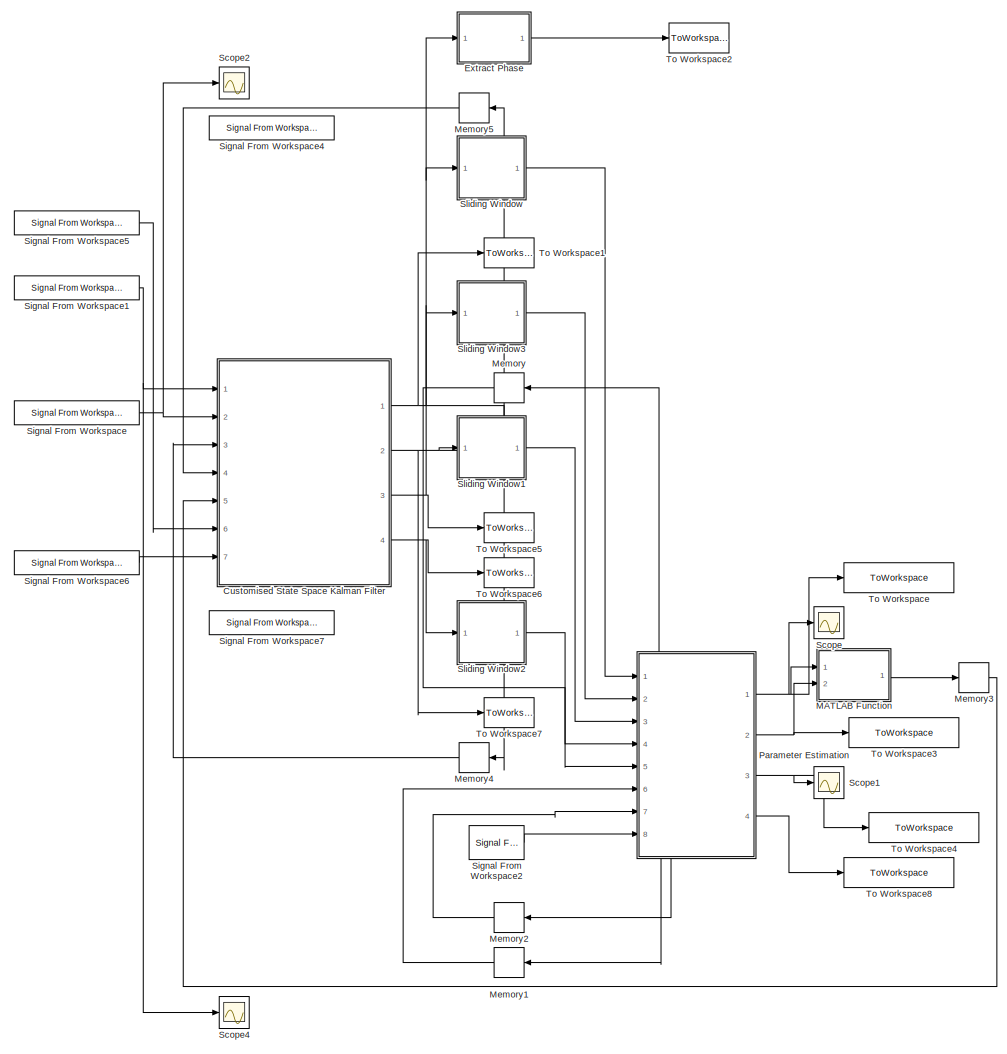
[diagram: root canvas - part 1/2, most of the canvas]
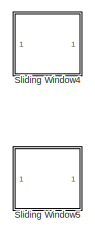
[diagram: root canvas - part 2/2, top right region]
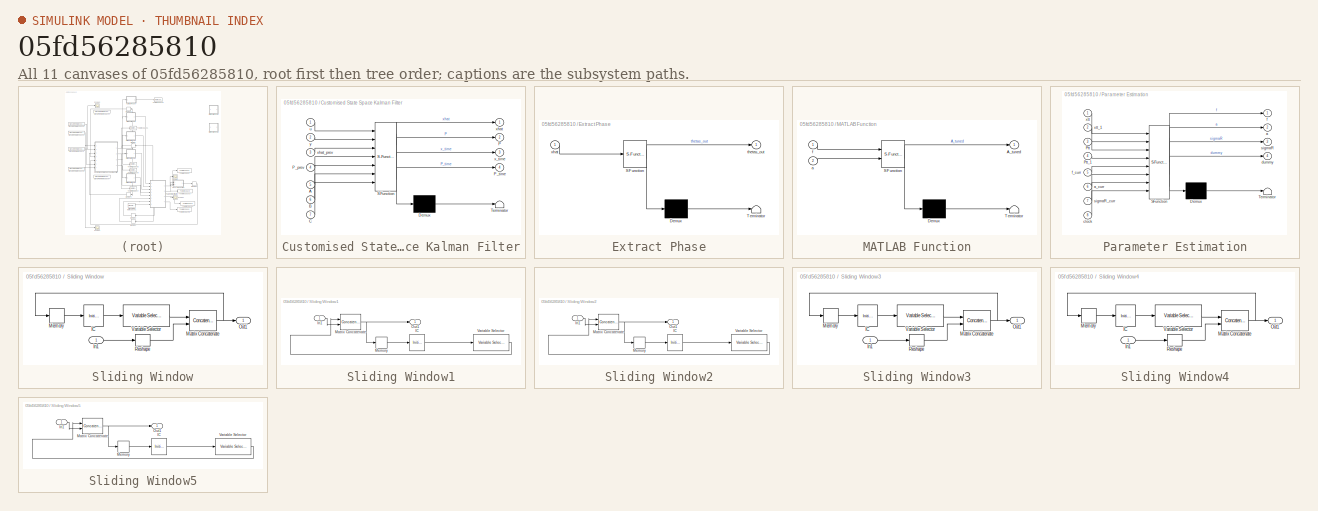
[diagram: thumbnail index - all 11 canvases of the model, root first then tree order]
MODEL slx_05fd56285810
KIND model
CONFIG AbsTol = auto
CONFIG EnableMultiTasking = off
CONFIG FixedStep = model.Ts
CONFIG MaxStep = auto
CONFIG MinStep = auto
CONFIG RelTol = 1e-6
CONFIG SampleTimeConstraint = Unconstrained
CONFIG Solver = VariableStepAuto
CONFIG SolverName = VariableStepAuto
CONFIG StartTime = 0.0
CONFIG StopTime = model.sim_dur
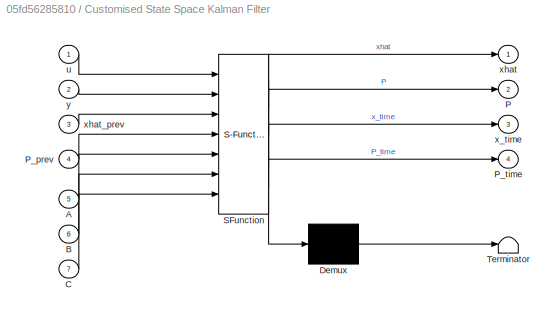
BLOCK [SubSystem] Customised State Space Kalman Filter
  ErrorFcn = Stateflow.Translate.translate
  PermitHierarchicalResolution = ExplicitOnly
  Ports = [7, 4]
  RequestExecContextInheritance = off
  SFBlockType = MATLAB Function
  TreatAsAtomicUnit = on
BLOCK [Demux] Customised State Space Kalman Filter/ Demux 
  Outputs = 1
  Ports = [1, 1]
BLOCK [S-Function] Customised State Space Kalman Filter/ SFunction 
  EnableBusSupport = on
  FunctionName = sf_sfun
  Parameters = model
  PortCounts = [7 5]
  Ports = [7, 5]
  SFcnIsStateOwnerBlock = off
  SFunctionDeploymentMode = off
  Tag = Stateflow S-Function 6
BLOCK [Terminator] Customised State Space Kalman Filter/ Terminator 
BLOCK [Inport] Customised State Space Kalman Filter/A
  IconDisplay = Port number
  Port = 5
BLOCK [Inport] Customised State Space Kalman Filter/B
  IconDisplay = Port number
  Port = 6
BLOCK [Inport] Customised State Space Kalman Filter/C
  IconDisplay = Port number
  Port = 7
BLOCK [Outport] Customised State Space Kalman Filter/P
  IconDisplay = Port number
  Port = 2
BLOCK [Inport] Customised State Space Kalman Filter/P_prev
  IconDisplay = Port number
  Port = 4
BLOCK [Outport] Customised State Space Kalman Filter/P_time
  IconDisplay = Port number
  Port = 4
BLOCK [Inport] Customised State Space Kalman Filter/u
  IconDisplay = Port number
BLOCK [Outport] Customised State Space Kalman Filter/x_time
  IconDisplay = Port number
  Port = 3
BLOCK [Outport] Customised State Space Kalman Filter/xhat
  IconDisplay = Port number
BLOCK [Inport] Customised State Space Kalman Filter/xhat_prev
  IconDisplay = Port number
  Port = 3
BLOCK [Inport] Customised State Space Kalman Filter/y
  IconDisplay = Port number
  Port = 2
BLOCK [SubSystem] Extract Phase
  ErrorFcn = Stateflow.Translate.translate
  PermitHierarchicalResolution = ExplicitOnly
  Ports = [1, 1]
  RequestExecContextInheritance = off
  SFBlockType = MATLAB Function
  SystemSampleTime = model.Ts
  TreatAsAtomicUnit = on
BLOCK [Demux] Extract Phase/ Demux 
  Outputs = 1
  Ports = [1, 1]
BLOCK [S-Function] Extract Phase/ SFunction 
  EnableBusSupport = on
  FunctionName = sf_sfun
  PortCounts = [1 2]
  Ports = [1, 2]
  SFcnIsStateOwnerBlock = off
  SFunctionDeploymentMode = off
  Tag = Stateflow S-Function 2
BLOCK [Terminator] Extract Phase/ Terminator 
BLOCK [Outport] Extract Phase/thetas_out
  IconDisplay = Port number
BLOCK [Inport] Extract Phase/xhat
  IconDisplay = Port number
BLOCK [SubSystem] MATLAB Function
  ErrorFcn = Stateflow.Translate.translate
  PermitHierarchicalResolution = ExplicitOnly
  Ports = [2, 1]
  RequestExecContextInheritance = off
  SFBlockType = MATLAB Function
  SystemSampleTime = model.Ts
  TreatAsAtomicUnit = on
BLOCK [Demux] MATLAB Function/ Demux 
  Outputs = 1
  Ports = [1, 1]
BLOCK [S-Function] MATLAB Function/ SFunction 
  EnableBusSupport = on
  FunctionName = sf_sfun
  Parameters = model
  PortCounts = [2 2]
  Ports = [2, 2]
  SFcnIsStateOwnerBlock = off
  SFunctionDeploymentMode = off
  Tag = Stateflow S-Function 4
BLOCK [Terminator] MATLAB Function/ Terminator 
BLOCK [Outport] MATLAB Function/A_tuned
  IconDisplay = Port number
BLOCK [Inport] MATLAB Function/a
  IconDisplay = Port number
  Port = 2
BLOCK [Inport] MATLAB Function/f
  IconDisplay = Port number
BLOCK [Memory] Memory
  InheritSampleTime = on
  InitialCondition = f_curr
BLOCK [Memory] Memory1
  InheritSampleTime = on
  InitialCondition = a_curr
BLOCK [Memory] Memory2
  InheritSampleTime = on
  InitialCondition = sigmaR_curr
BLOCK [Memory] Memory3
  InheritSampleTime = on
  InitialCondition = model.A
BLOCK [Memory] Memory4
  InheritSampleTime = on
  InitialCondition = model.x_0
BLOCK [Memory] Memory5
  InheritSampleTime = on
  InitialCondition = model.Q
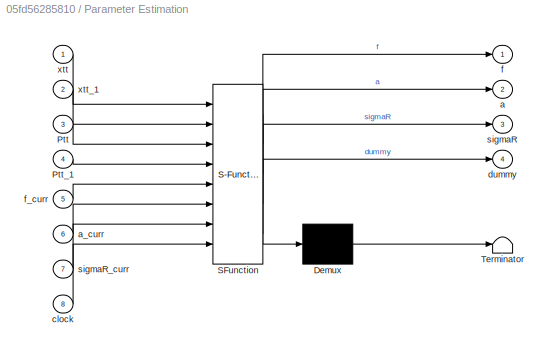
BLOCK [SubSystem] Parameter Estimation
  ErrorFcn = Stateflow.Translate.translate
  PermitHierarchicalResolution = ExplicitOnly
  Ports = [8, 4]
  RequestExecContextInheritance = off
  SFBlockType = MATLAB Function
  SystemSampleTime = model.Ts
  TreatAsAtomicUnit = on
BLOCK [Demux] Parameter Estimation/ Demux 
  Outputs = 1
  Ports = [1, 1]
BLOCK [S-Function] Parameter Estimation/ SFunction 
  EnableBusSupport = on
  FunctionName = sf_sfun
  Parameters = model
  PortCounts = [8 5]
  Ports = [8, 5]
  SFcnIsStateOwnerBlock = off
  SFunctionDeploymentMode = off
  Tag = Stateflow S-Function 1
BLOCK [Terminator] Parameter Estimation/ Terminator 
BLOCK [Inport] Parameter Estimation/Ptt
  IconDisplay = Port number
  Port = 3
BLOCK [Inport] Parameter Estimation/Ptt_1
  IconDisplay = Port number
  Port = 4
BLOCK [Outport] Parameter Estimation/a
  IconDisplay = Port number
  Port = 2
BLOCK [Inport] Parameter Estimation/a_curr
  IconDisplay = Port number
  Port = 6
BLOCK [Inport] Parameter Estimation/clock
  IconDisplay = Port number
  Port = 8
BLOCK [Outport] Parameter Estimation/dummy
  IconDisplay = Port number
  Port = 4
BLOCK [Outport] Parameter Estimation/f
  IconDisplay = Port number
BLOCK [Inport] Parameter Estimation/f_curr
  IconDisplay = Port number
  Port = 5
BLOCK [Outport] Parameter Estimation/sigmaR
  IconDisplay = Port number
  Port = 3
BLOCK [Inport] Parameter Estimation/sigmaR_curr
  IconDisplay = Port number
  Port = 7
BLOCK [Inport] Parameter Estimation/xtt
  IconDisplay = Port number
BLOCK [Inport] Parameter Estimation/xtt_1
  IconDisplay = Port number
  Port = 2
BLOCK [Scope] Scope
  Floating = off
  NumInputPorts = 1
  Ports = [1]
  ScopeSpecificationString = Simulink.scopes.TimeScopeBlockCfg('CurrentConfiguration', extmgr.ConfigurationSet(extmgr.Configuration('Core','General UI',true),extmgr.Configuration('Core','Source UI',true),extmgr.Configuration('Sources','WiredSimulink',true,'DataLoggingVariableName','ScopeData1'),extmgr.Configuration('Visuals','Time Domain',true,'SerializedDisplays',{struct('MinYLimReal','-12.86093','MaxYLimReal','18.85715','YL...<+1457ch>
BLOCK [Scope] Scope1
  Floating = off
  NumInputPorts = 1
  Ports = [1]
  ScopeSpecificationString = Simulink.scopes.TimeScopeBlockCfg('CurrentConfiguration', extmgr.ConfigurationSet(extmgr.Configuration('Core','General UI',true),extmgr.Configuration('Core','Source UI',true),extmgr.Configuration('Sources','WiredSimulink',true,'DataLoggingVariableName','ScopeData1'),extmgr.Configuration('Visuals','Time Domain',true,'SerializedDisplays',{struct('MinYLimReal','-1.00000','MaxYLimReal','1.00000','YLab...<+1386ch>
BLOCK [Scope] Scope2
  Floating = off
  NumInputPorts = 1
  Ports = [1]
  ScopeSpecificationString = Simulink.scopes.TimeScopeBlockCfg('CurrentConfiguration', extmgr.ConfigurationSet(extmgr.Configuration('Core','General UI',true),extmgr.Configuration('Core','Source UI',true),extmgr.Configuration('Sources','WiredSimulink',true,'DataLoggingVariableName','ScopeData1'),extmgr.Configuration('Visuals','Time Domain',true,'SerializedDisplays',{struct('MinYLimReal','-0.48787','MaxYLimReal','0.48787','YLab...<+1451ch>
BLOCK [Scope] Scope4
  Floating = off
  NumInputPorts = 1
  Ports = [1]
  ScopeSpecificationString = Simulink.scopes.TimeScopeBlockCfg('CurrentConfiguration', extmgr.ConfigurationSet(extmgr.Configuration('Core','General UI',true),extmgr.Configuration('Core','Source UI',true),extmgr.Configuration('Sources','WiredSimulink',true),extmgr.Configuration('Visuals','Time Domain',true,'SerializedDisplays',{struct('MinYLimReal','-1.00000','MaxYLimReal','1.00000','YLabelReal','','MinYLimMag','0.00000','MaxY...<+1371ch>
BLOCK [Reference] Signal From Workspace  REF=dspsrcs4/Signal From
Workspace
  Ports = [0, 1]
  SourceBlock = dspsrcs4/Signal From\nWorkspace
  SourceProductBaseCode = DS
  SourceProductName = DSP System Toolbox
  SourceType = Signal From Workspace
BLOCK [Reference] Signal From Workspace1  REF=dspsrcs4/Signal From
Workspace
  Ports = [0, 1]
  SourceBlock = dspsrcs4/Signal From\nWorkspace
  SourceProductBaseCode = DS
  SourceProductName = DSP System Toolbox
  SourceType = Signal From Workspace
BLOCK [Reference] Signal From Workspace2  REF=dspsrcs4/Signal From
Workspace
  Ports = [0, 1]
  SourceBlock = dspsrcs4/Signal From\nWorkspace
  SourceProductBaseCode = DS
  SourceProductName = DSP System Toolbox
  SourceType = Signal From Workspace
BLOCK [Reference] Signal From Workspace4  REF=dspsrcs4/Signal From
Workspace
  Ports = [0, 1]
  SourceBlock = dspsrcs4/Signal From\nWorkspace
  SourceProductBaseCode = DS
  SourceProductName = DSP System Toolbox
  SourceType = Signal From Workspace
BLOCK [Reference] Signal From Workspace5  REF=dspsrcs4/Signal From
Workspace
  Ports = [0, 1]
  SourceBlock = dspsrcs4/Signal From\nWorkspace
  SourceProductBaseCode = DS
  SourceProductName = DSP System Toolbox
  SourceType = Signal From Workspace
BLOCK [Reference] Signal From Workspace6  REF=dspsrcs4/Signal From
Workspace
  Ports = [0, 1]
  SourceBlock = dspsrcs4/Signal From\nWorkspace
  SourceProductBaseCode = DS
  SourceProductName = DSP System Toolbox
  SourceType = Signal From Workspace
BLOCK [Reference] Signal From Workspace7  REF=dspsrcs4/Signal From
Workspace
  Ports = [0, 1]
  SourceBlock = dspsrcs4/Signal From\nWorkspace
  SourceProductBaseCode = DS
  SourceProductName = DSP System Toolbox
  SourceType = Signal From Workspace
BLOCK [SubSystem] Sliding Window
  Ports = [1, 1]
  RequestExecContextInheritance = off
BLOCK [InitialCondition] Sliding Window/IC
  Value = zeros(model.param_est_length+1, 2)
BLOCK [Inport] Sliding Window/In1
  IconDisplay = Port number
BLOCK [Concatenate] Sliding Window/Matrix Concatenate
  Mode = Multidimensional array
  Ports = [2, 1]
BLOCK [Memory] Sliding Window/Memory
  InheritSampleTime = on
BLOCK [Outport] Sliding Window/Out1
  IconDisplay = Port number
BLOCK [Reshape] Sliding Window/Reshape
  OutputDimensionality = Row vector (2-D)
  Ports = [1, 1]
BLOCK [Reference] Sliding Window/Variable Selector  REF=dspindex/Variable
Selector
  Ports = [1, 1]
  SourceBlock = dspindex/Variable\nSelector
  SourceProductBaseCode = DS
  SourceProductName = DSP System Toolbox
  SourceType = Variable Selector
BLOCK [SubSystem] Sliding Window1
  Ports = [1, 1]
  RequestExecContextInheritance = off
BLOCK [InitialCondition] Sliding Window1/IC
  Value = zeros(2*(model.param_est_length+1), 2)
BLOCK [Inport] Sliding Window1/In1
  IconDisplay = Port number
BLOCK [Concatenate] Sliding Window1/Matrix Concatenate
  Mode = Multidimensional array
  Ports = [2, 1]
BLOCK [Memory] Sliding Window1/Memory
  InheritSampleTime = on
BLOCK [Outport] Sliding Window1/Out1
  IconDisplay = Port number
BLOCK [Reference] Sliding Window1/Variable Selector  REF=dspindex/Variable
Selector
  Ports = [1, 1]
  SourceBlock = dspindex/Variable\nSelector
  SourceProductBaseCode = DS
  SourceProductName = DSP System Toolbox
  SourceType = Variable Selector
BLOCK [SubSystem] Sliding Window2
  Ports = [1, 1]
  RequestExecContextInheritance = off
BLOCK [InitialCondition] Sliding Window2/IC
  Value = zeros(2*(model.param_est_length+1), 2)
BLOCK [Inport] Sliding Window2/In1
  IconDisplay = Port number
BLOCK [Concatenate] Sliding Window2/Matrix Concatenate
  Mode = Multidimensional array
  Ports = [2, 1]
BLOCK [Memory] Sliding Window2/Memory
  InheritSampleTime = on
BLOCK [Outport] Sliding Window2/Out1
  IconDisplay = Port number
BLOCK [Reference] Sliding Window2/Variable Selector  REF=dspindex/Variable
Selector
  Ports = [1, 1]
  SourceBlock = dspindex/Variable\nSelector
  SourceProductBaseCode = DS
  SourceProductName = DSP System Toolbox
  SourceType = Variable Selector
BLOCK [SubSystem] Sliding Window3
  Ports = [1, 1]
  RequestExecContextInheritance = off
BLOCK [InitialCondition] Sliding Window3/IC
  Value = zeros(model.param_est_length+1, 2)
BLOCK [Inport] Sliding Window3/In1
  IconDisplay = Port number
BLOCK [Concatenate] Sliding Window3/Matrix Concatenate
  Mode = Multidimensional array
  Ports = [2, 1]
BLOCK [Memory] Sliding Window3/Memory
  InheritSampleTime = on
BLOCK [Outport] Sliding Window3/Out1
  IconDisplay = Port number
BLOCK [Reshape] Sliding Window3/Reshape
  OutputDimensionality = Row vector (2-D)
  Ports = [1, 1]
BLOCK [Reference] Sliding Window3/Variable Selector  REF=dspindex/Variable
Selector
  Ports = [1, 1]
  SourceBlock = dspindex/Variable\nSelector
  SourceProductBaseCode = DS
  SourceProductName = DSP System Toolbox
  SourceType = Variable Selector
BLOCK [SubSystem] Sliding Window4
  Commented = on
  Ports = [1, 1]
  RequestExecContextInheritance = off
BLOCK [InitialCondition] Sliding Window4/IC
  Value = zeros(model.window, 2)
BLOCK [Inport] Sliding Window4/In1
  IconDisplay = Port number
BLOCK [Concatenate] Sliding Window4/Matrix Concatenate
  Mode = Multidimensional array
  Ports = [2, 1]
BLOCK [Memory] Sliding Window4/Memory
  InheritSampleTime = on
BLOCK [Outport] Sliding Window4/Out1
  IconDisplay = Port number
BLOCK [Reshape] Sliding Window4/Reshape
  OutputDimensionality = Row vector (2-D)
  Ports = [1, 1]
BLOCK [Reference] Sliding Window4/Variable Selector  REF=dspindex/Variable
Selector
  Ports = [1, 1]
  SourceBlock = dspindex/Variable\nSelector
  SourceProductBaseCode = DS
  SourceProductName = DSP System Toolbox
  SourceType = Variable Selector
BLOCK [SubSystem] Sliding Window5
  Commented = on
  Ports = [1, 1]
  RequestExecContextInheritance = off
BLOCK [InitialCondition] Sliding Window5/IC
  Value = zeros(2*model.window, 2)
BLOCK [Inport] Sliding Window5/In1
  IconDisplay = Port number
BLOCK [Concatenate] Sliding Window5/Matrix Concatenate
  Mode = Multidimensional array
  Ports = [2, 1]
BLOCK [Memory] Sliding Window5/Memory
  InheritSampleTime = on
BLOCK [Outport] Sliding Window5/Out1
  IconDisplay = Port number
BLOCK [Reference] Sliding Window5/Variable Selector  REF=dspindex/Variable
Selector
  Ports = [1, 1]
  SourceBlock = dspindex/Variable\nSelector
  SourceProductBaseCode = DS
  SourceProductName = DSP System Toolbox
  SourceType = Variable Selector
BLOCK [ToWorkspace] To Workspace
  MaxDataPoints = 1
  Ports = [1]
  SampleTime = model.Ts
  Save2DSignal = 2-D array (concatenate along first dimension)
  VariableName = f_calculated
BLOCK [ToWorkspace] To Workspace1
  MaxDataPoints = inf
  Ports = [1]
  SampleTime = model.Ts
  Save2DSignal = 2-D array (concatenate along first dimension)
  VariableName = xtt
BLOCK [ToWorkspace] To Workspace2
  MaxDataPoints = inf
  Ports = [1]
  SampleTime = model.Ts
  Save2DSignal = 2-D array (concatenate along first dimension)
  VariableName = thetas
BLOCK [ToWorkspace] To Workspace3
  MaxDataPoints = 2
  Ports = [1]
  SampleTime = model.Ts
  Save2DSignal = 2-D array (concatenate along first dimension)
  VariableName = a_calculated
BLOCK [ToWorkspace] To Workspace4
  MaxDataPoints = 1
  Ports = [1]
  SampleTime = model.Ts
  Save2DSignal = 2-D array (concatenate along first dimension)
  VariableName = sigma2_R_calculated
BLOCK [ToWorkspace] To Workspace5
  MaxDataPoints = inf
  Ports = [1]
  SampleTime = model.Ts
  Save2DSignal = 2-D array (concatenate along first dimension)
  VariableName = xtt_1
BLOCK [ToWorkspace] To Workspace6
  MaxDataPoints = inf
  Ports = [1]
  SampleTime = model.Ts
  Save2DSignal = 2-D array (concatenate along first dimension)
  VariableName = Ptt_1
BLOCK [ToWorkspace] To Workspace7
  MaxDataPoints = inf
  Ports = [1]
  SampleTime = model.Ts
  Save2DSignal = 2-D array (concatenate along first dimension)
  VariableName = Ptt
BLOCK [ToWorkspace] To Workspace8
  MaxDataPoints = inf
  Ports = [1]
  SampleTime = model.Ts
  Save2DSignal = 2-D array (concatenate along first dimension)
  VariableName = dummy
NET Customised State Space Kalman Filter:1 -> Extract Phase:1, Memory4:1, Sliding Window:1, To Workspace1:1
NET Customised State Space Kalman Filter:2 -> Memory5:1, Sliding Window1:1, To Workspace7:1
NET Customised State Space Kalman Filter:3 -> Sliding Window3:1, To Workspace5:1
NET Customised State Space Kalman Filter:4 -> Sliding Window2:1, To Workspace6:1
LINE Extract Phase:1 -> To Workspace2:1
LINE MATLAB Function:1 -> Memory3:1
LINE Memory1:1 -> Parameter Estimation:6
LINE Memory2:1 -> Parameter Estimation:7
LINE Memory3:1 -> Customised State Space Kalman Filter:5
LINE Memory4:1 -> Customised State Space Kalman Filter:3
LINE Memory5:1 -> Customised State Space Kalman Filter:4
LINE Memory:1 -> Parameter Estimation:5
NET Parameter Estimation:1 -> MATLAB Function:1, Memory:1, Scope:1, To Workspace:1
NET Parameter Estimation:2 -> MATLAB Function:2, Memory1:1, To Workspace3:1
NET Parameter Estimation:3 -> Memory2:1, Scope1:1, To Workspace4:1
LINE Parameter Estimation:4 -> To Workspace8:1
NET Signal From Workspace1:1 -> Customised State Space Kalman Filter:1, Scope4:1
LINE Signal From Workspace2:1 -> Parameter Estimation:8
LINE Signal From Workspace5:1 -> Customised State Space Kalman Filter:6
LINE Signal From Workspace6:1 -> Customised State Space Kalman Filter:7
NET Signal From Workspace:1 -> Customised State Space Kalman Filter:2, Scope2:1
LINE Sliding Window/IC:1 -> Sliding Window/Variable Selector:1
LINE Sliding Window/In1:1 -> Sliding Window/Reshape:1
NET Sliding Window/Matrix Concatenate:1 -> Sliding Window/Memory:1, Sliding Window/Out1:1
LINE Sliding Window/Memory:1 -> Sliding Window/IC:1
LINE Sliding Window/Reshape:1 -> Sliding Window/Matrix Concatenate:2
LINE Sliding Window/Variable Selector:1 -> Sliding Window/Matrix Concatenate:1
LINE Sliding Window1/IC:1 -> Sliding Window1/Variable Selector:1
LINE Sliding Window1/In1:1 -> Sliding Window1/Matrix Concatenate:2
NET Sliding Window1/Matrix Concatenate:1 -> Sliding Window1/Memory:1, Sliding Window1/Out1:1
LINE Sliding Window1/Memory:1 -> Sliding Window1/IC:1
LINE Sliding Window1/Variable Selector:1 -> Sliding Window1/Matrix Concatenate:1
LINE Sliding Window1:1 -> Parameter Estimation:3
LINE Sliding Window2/IC:1 -> Sliding Window2/Variable Selector:1
LINE Sliding Window2/In1:1 -> Sliding Window2/Matrix Concatenate:2
NET Sliding Window2/Matrix Concatenate:1 -> Sliding Window2/Memory:1, Sliding Window2/Out1:1
LINE Sliding Window2/Memory:1 -> Sliding Window2/IC:1
LINE Sliding Window2/Variable Selector:1 -> Sliding Window2/Matrix Concatenate:1
LINE Sliding Window2:1 -> Parameter Estimation:4
LINE Sliding Window3/IC:1 -> Sliding Window3/Variable Selector:1
LINE Sliding Window3/In1:1 -> Sliding Window3/Reshape:1
NET Sliding Window3/Matrix Concatenate:1 -> Sliding Window3/Memory:1, Sliding Window3/Out1:1
LINE Sliding Window3/Memory:1 -> Sliding Window3/IC:1
LINE Sliding Window3/Reshape:1 -> Sliding Window3/Matrix Concatenate:2
LINE Sliding Window3/Variable Selector:1 -> Sliding Window3/Matrix Concatenate:1
LINE Sliding Window3:1 -> Parameter Estimation:2
LINE Sliding Window4/IC:1 -> Sliding Window4/Variable Selector:1
LINE Sliding Window4/In1:1 -> Sliding Window4/Reshape:1
NET Sliding Window4/Matrix Concatenate:1 -> Sliding Window4/Memory:1, Sliding Window4/Out1:1
LINE Sliding Window4/Memory:1 -> Sliding Window4/IC:1
LINE Sliding Window4/Reshape:1 -> Sliding Window4/Matrix Concatenate:2
LINE Sliding Window4/Variable Selector:1 -> Sliding Window4/Matrix Concatenate:1
LINE Sliding Window5/IC:1 -> Sliding Window5/Variable Selector:1
LINE Sliding Window5/In1:1 -> Sliding Window5/Matrix Concatenate:2
NET Sliding Window5/Matrix Concatenate:1 -> Sliding Window5/Memory:1, Sliding Window5/Out1:1
LINE Sliding Window5/Memory:1 -> Sliding Window5/IC:1
LINE Sliding Window5/Variable Selector:1 -> Sliding Window5/Matrix Concatenate:1
LINE Sliding Window:1 -> Parameter Estimation:1
note: NET lines group one-source signal fan-out (src -> all destinations, sorted); 1:1 wires keep LINE
CHART Parameter Estimation states=1 transitions=1
  STATE_LABEL 'eML_blk_kernel()'
  STATE_LABEL "SCRIPT:\nfunction [f, a, sigmaR, dummy]  = parameter_estimation(xtt, xtt_1, Ptt, Ptt_1, model, f_curr, a_curr, sigmaR_curr, clock)\n\n%WARNING!!!!!! To-do: add dimensions_param = model.state_dimensions;\n%Right now, 2 is used as a dimension because Simulink complains when\n%variables are used for matrix dimensions. When the state space is\n%extended for artefact removal, change the 2's to a new value.\n%...<+3608ch>"
CHART Extract Phase states=1 transitions=1
  STATE_LABEL 'eML_blk_kernel()'
  STATE_LABEL 'SCRIPT:\nfunction thetas_out  = extract_phase(xhat)\nnum_rhythms = length(xhat)/2;\n% thetas_out = zeros(num_rhythms, 1);\n% \n% for j = 1:num_rhythms\n%     Im = xhat(2 * (j-1) + 2);\n%     Re = xhat(2 * (j-1) + 1);\n%     thetas_out(j, 1) = atan2(Im, Re);\n% end\n\nthetas_out = atan2(xhat(2:2:2*num_rhythms), xhat(1:2:2*(num_rhythms-1)+1))'
CHART MATLAB Function states=1 transitions=1
  STATE_LABEL 'eML_blk_kernel()'
  STATE_LABEL 'SCRIPT:\nfunction A_tuned = tune_A(f, a, model)\nangles = 2*pi*model.Ts*f;\nrot_cell = cell(1); % GENERALISE FOR MULTIPLE FREQ TRACKING\n\nfor j = 1:1 % model.num_rhythms GENERALISE FOR MULTIPLE FREQ TRACKING\n    rot_j = [cos(angles(j)) -sin(angles(j)); sin(angles(j)) cos(angles(j))];\n    rot_cell{j} = rot_j;\nend\nrot =blkdiag(rot_cell{1}); % GENERALISE FOR MULTIPLE FREQ TRACKING\n\nA_tuned = a*rot;\n'
CHART Customised State Space
Kalman Filter states=1 transitions=1
  STATE_LABEL 'eML_blk_kernel()'
  STATE_LABEL "SCRIPT:\nfunction [xhat, P, x_time, P_time] = custom_state_space_kalman(u, y, xhat_prev, P_prev, A, B, C, model)\nx_time = A*xhat_prev + B*u;\nP_time = A*P_prev*A'+ model.Gm*model.Q*model.Gm';\n\nK = P_time*(C')*pinv(C*P_time*C' + model.R);\nepsilon = y - C*x_time;\n\nxhat = x_time + K*epsilon;\nP = P_time - K*C*P_time;\nend"
